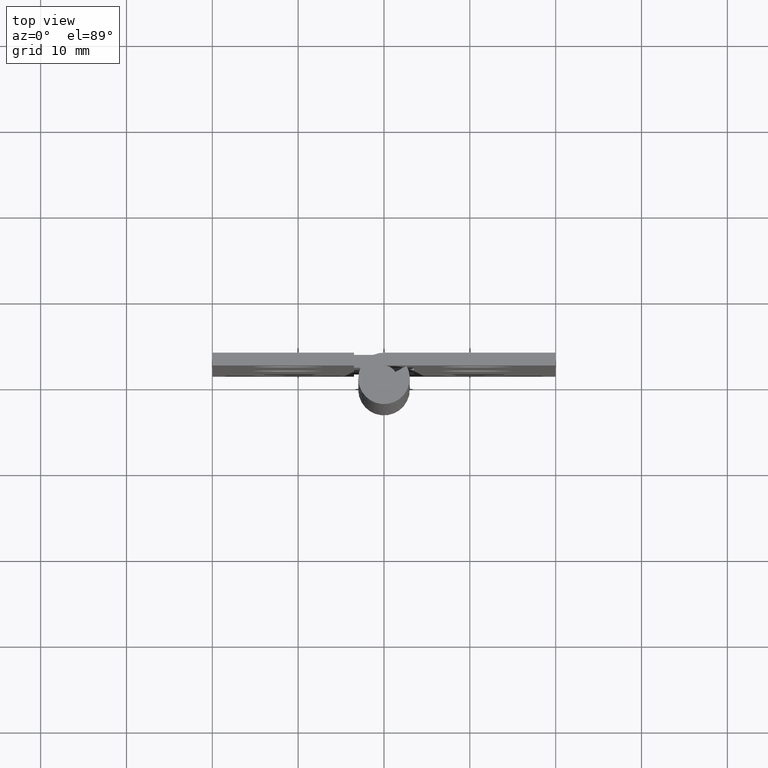
[diagram: clean part render]
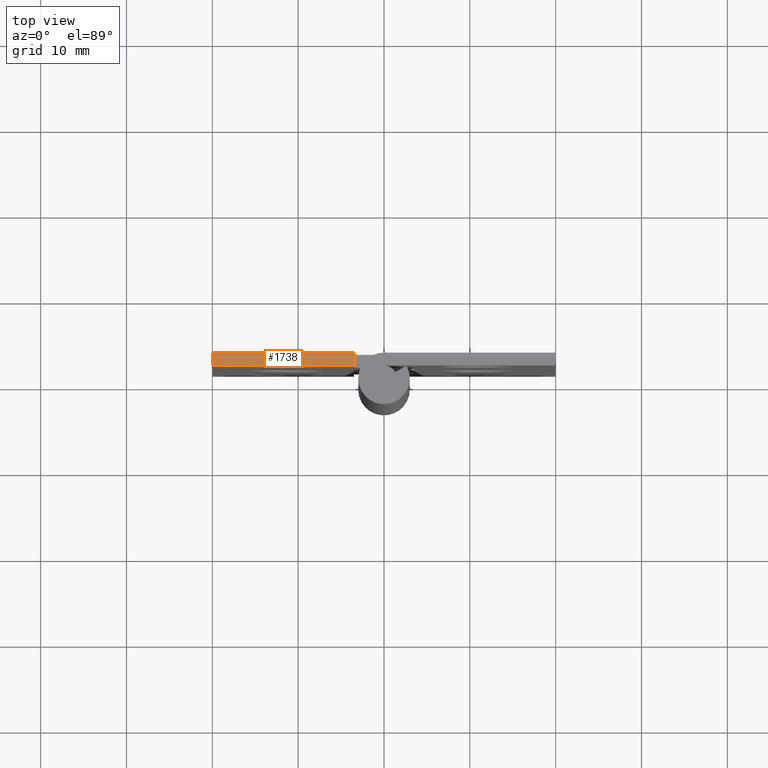
[diagram: same view with one face highlighted and labeled with its STEP entity id]
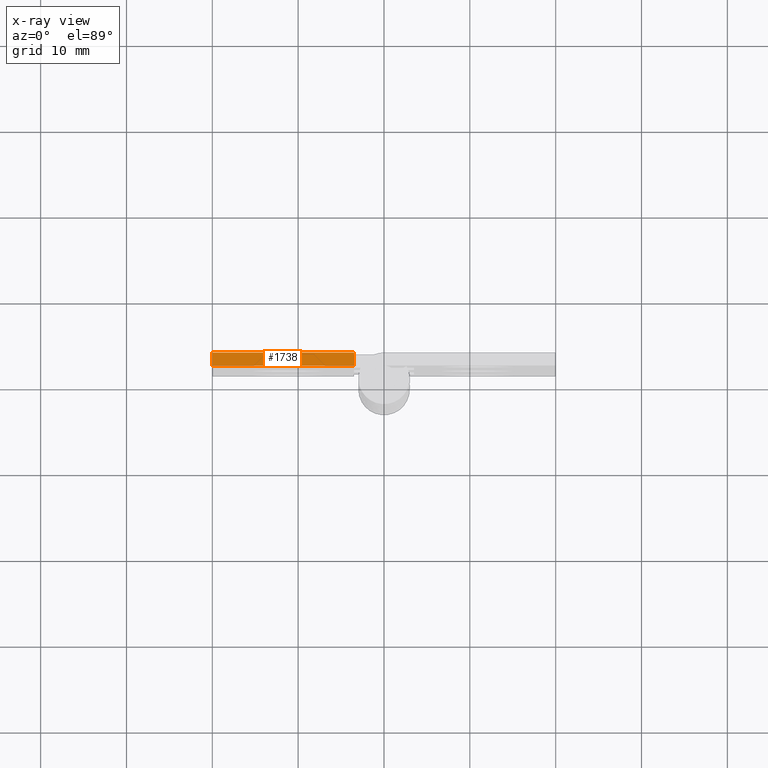
[diagram: x-ray of the same camera — body ghosted, the highlighted face saturated]
A machine part, top view. The second image highlights one B-rep face of the part: STEP entity #1738.
The next image is the same camera in x-ray: the body ghosted, the highlighted face saturated — about 0% of this face is hidden behind the body in this view.
In plain terms, the highlighted face is a freeform B-spline surface patch.
Its self-contained STEP definition (entity closure, byte-faithful):
#1591=CARTESIAN_POINT('',(-3.500000000000000,3.0,75.0));
#1592=VERTEX_POINT('',#1591);
#1598=CARTESIAN_POINT('',(-3.500000000000000,1.499999999999946,75.0));
#1599=VERTEX_POINT('',#1598);
#1600=CARTESIAN_POINT('',(-3.500000000000000,1.499999999999946,75.0));
#1601=CARTESIAN_POINT('',(-3.500000000000000,3.0,75.0));
#1602=QUASI_UNIFORM_CURVE('',1,(#1600,#1601),.UNSPECIFIED.,.F.,.U.);
#1603=EDGE_CURVE('',#1599,#1592,#1602,.T.);
#1688=CARTESIAN_POINT('',(-20.0,3.0,75.0));
#1689=VERTEX_POINT('',#1688);
#1690=CARTESIAN_POINT('',(-20.0,1.500000000000000,75.0));
#1691=VERTEX_POINT('',#1690);
#1692=CARTESIAN_POINT('',(-20.0,3.0,75.0));
#1693=CARTESIAN_POINT('',(-20.0,1.500000000000000,75.0));
#1694=QUASI_UNIFORM_CURVE('',1,(#1692,#1693),.UNSPECIFIED.,.F.,.U.);
#1695=EDGE_CURVE('',#1689,#1691,#1694,.T.);
#1719=CARTESIAN_POINT('',(-20.824174968019801,1.425075002907234,75.0));
#1720=CARTESIAN_POINT('',(-2.675824589415714,1.425075002907234,75.0));
#1721=CARTESIAN_POINT('',(-20.824174968019801,3.074925037325847,75.0));
#1722=CARTESIAN_POINT('',(-2.675824589415714,3.074925037325847,75.0));
#1723=B_SPLINE_SURFACE_WITH_KNOTS('',1,1,((#1719,#1721),(#1720,#1722)),.UNSPECIFIED.,.F.,.F.,.U.,(2,2),(2,2),(0.0,18.148350378604089),(0.041708334948495,0.958291687403247),.UNSPECIFIED.);
#1724=ORIENTED_EDGE('',*,*,#1603,.T.);
#1725=CARTESIAN_POINT('',(-3.500000000000000,3.0,75.0));
#1726=CARTESIAN_POINT('',(-20.0,3.0,75.0));
#1727=QUASI_UNIFORM_CURVE('',1,(#1725,#1726),.UNSPECIFIED.,.F.,.U.);
#1728=EDGE_CURVE('',#1592,#1689,#1727,.T.);
#1729=ORIENTED_EDGE('',*,*,#1728,.T.);
#1730=ORIENTED_EDGE('',*,*,#1695,.T.);
#1731=CARTESIAN_POINT('',(-20.0,1.500000000000000,75.0));
#1732=CARTESIAN_POINT('',(-3.500000000000000,1.499999999999946,75.0));
#1733=QUASI_UNIFORM_CURVE('',1,(#1731,#1732),.UNSPECIFIED.,.F.,.U.);
#1734=EDGE_CURVE('',#1691,#1599,#1733,.T.);
#1735=ORIENTED_EDGE('',*,*,#1734,.T.);
#1736=EDGE_LOOP('',(#1724,#1729,#1730,#1735));
#1737=FACE_OUTER_BOUND('',#1736,.T.);
#1738=ADVANCED_FACE('',(#1737),#1723,.T.);